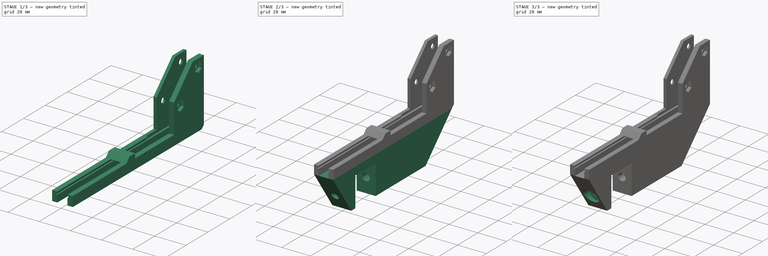
[diagram: build sequence overview — one tinted view per stage of 3, left to right]
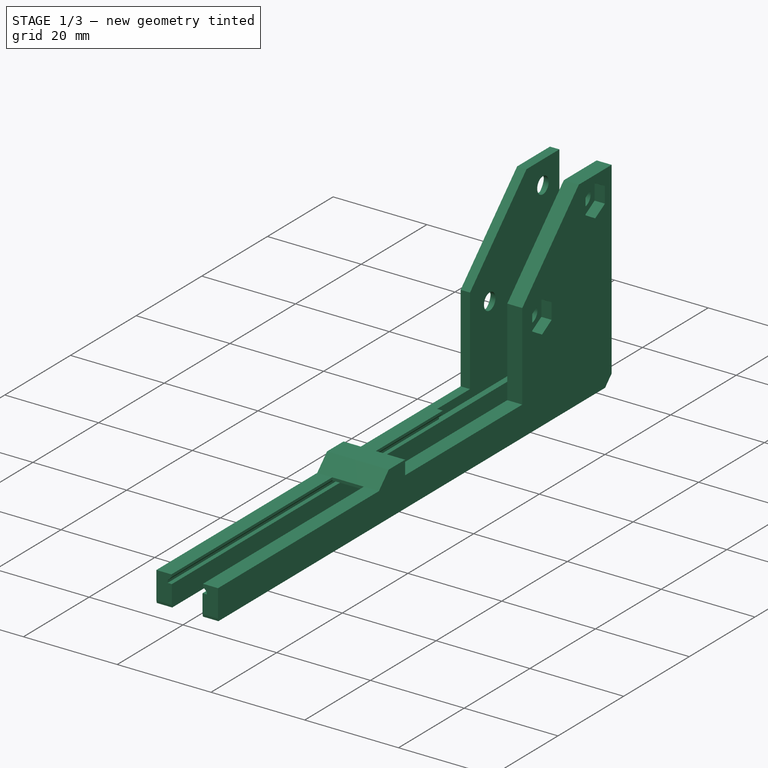
[diagram: stage 1 of 3 — iso view after this stage's code; geometry added in this stage tinted green]
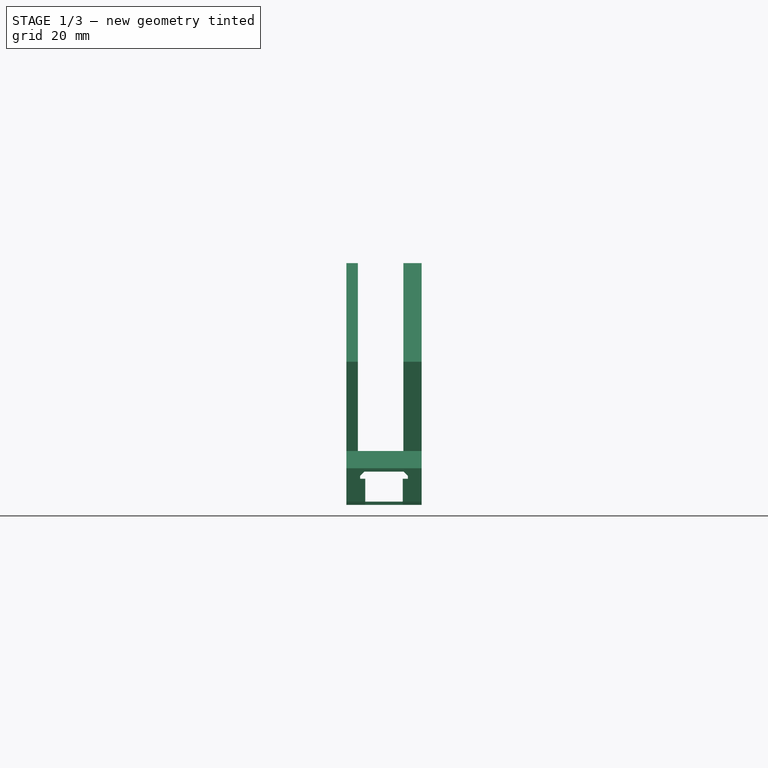
[diagram: stage 1 of 3 — front view after this stage's code; geometry added in this stage tinted green]
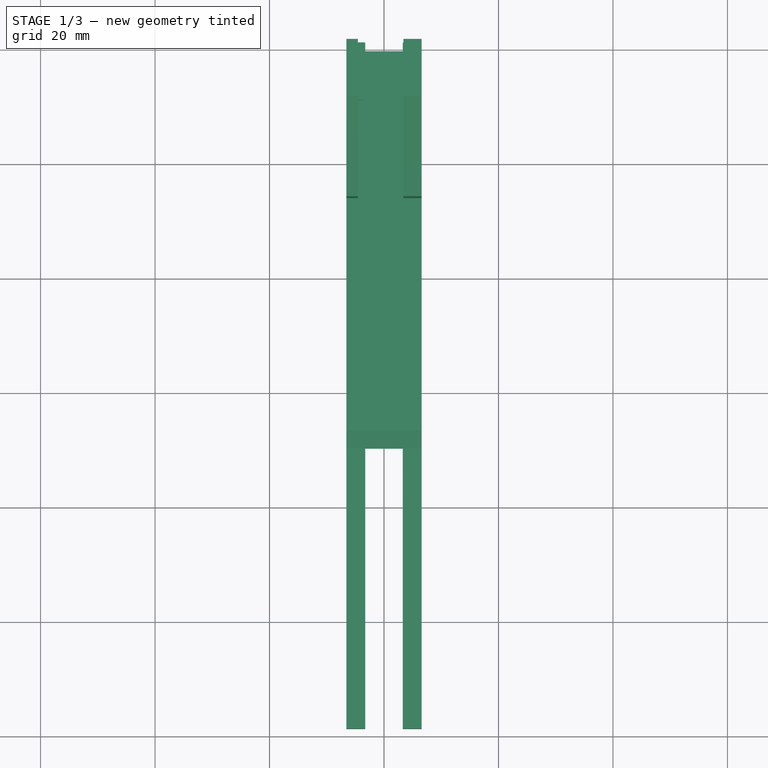
[diagram: stage 1 of 3 — top view after this stage's code; geometry added in this stage tinted green]
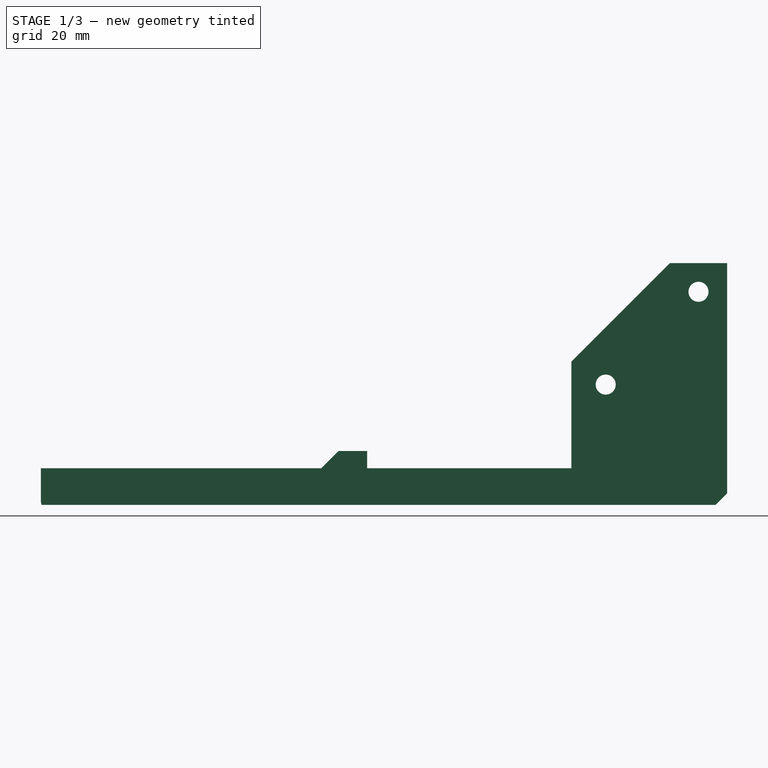
[diagram: stage 1 of 3 — right view after this stage's code; geometry added in this stage tinted green]
FCSTD DOCUMENT  (FreeCAD 0.20R29177 (Git))
Label: feeder-body-plastic-tape
License: All rights reserved
LicenseURL: http://en.wikipedia.org/wiki/All_rights_reserved
objects: Sketcher::SketchObject×5, PartDesign::Pocket×4, Part::Feature×1, PartDesign::FeatureBase×1, PartDesign::Pad×1, PartDesign::Body×1
note: 18 computed .brp shape members not serialized (recipe doc carries the construction recipe); baked Part::Feature solids carry a one-line shape summary decoded from their .brp

FEATURE [Sketcher::SketchObject] Sketch
  AttachmentOffset = pos=(0,0,5) rot=(0,0,1;0rad)
  FullyConstrained = false
  MapMode = 5
  Placement = pos=(0,0,5) rot=(0,0,1;0rad)
  Support = -> [XY_Plane]
  sketch-geometry (4):
    g0: LineSegment StartX=-45.8993 StartY=83.6874 StartZ=0 EndX=45.3893 EndY=83.6874 EndZ=0
    g1: LineSegment StartX=45.3893 StartY=83.6874 StartZ=0 EndX=45.3893 EndY=-43.8529 EndZ=0
    g2: LineSegment StartX=45.3893 StartY=-43.8529 StartZ=0 EndX=-45.8993 EndY=-43.8529 EndZ=0
    g3: LineSegment StartX=-45.8993 StartY=-43.8529 StartZ=0 EndX=-45.8993 EndY=83.6874 EndZ=0
  constraints (8):
    c: Coincident(g0,g1)
    c: Coincident(g1,g2)
    c: Coincident(g2,g3)
    c: Coincident(g3,g0)
    c: Horizontal(g0)
    c: Horizontal(g2)
    c: Vertical(g1)
    c: Vertical(g3)
FEATURE [Sketcher::SketchObject] Sketch001
  FullyConstrained = false
  MapMode = 5
  Placement = pos=(0,0,0) rot=(0.57735,0.57735,0.57735;2.0944rad)
  Support = -> [YZ_Plane]
  sketch-geometry (11):
    g0: LineSegment StartX=-38.5586 StartY=5 StartZ=0 EndX=-20.5586 EndY=-21.1 EndZ=0
    g1: LineSegment StartX=-20.5586 StartY=-21.1 StartZ=0 EndX=-16.5586 EndY=-21.1 EndZ=0
    g2: LineSegment StartX=-16.5586 StartY=-21.1 StartZ=0 EndX=-16.5586 EndY=-1 EndZ=0
    g3: LineSegment StartX=-16.5586 StartY=-1 StartZ=0 EndX=3.54144 EndY=-1 EndZ=0
    g4: LineSegment StartX=3.54144 StartY=-1 StartZ=0 EndX=3.54144 EndY=-21.1 EndZ=0
    g5: LineSegment StartX=3.54144 StartY=-21.1 StartZ=0 EndX=53.1136 EndY=-21.1 EndZ=0
    g6: LineSegment StartX=53.1136 StartY=-21.1 StartZ=0 EndX=79.2136 EndY=5 EndZ=0
    g7: LineSegment StartX=79.2136 StartY=5 StartZ=0 EndX=-38.5586 EndY=5 EndZ=0
    g8: LineSegment StartX=-16.5586 StartY=-1 StartZ=0 EndX=-16.5586 EndY=-0.5 EndZ=0
    g9: LineSegment StartX=-16.5586 StartY=-0.5 StartZ=0 EndX=3.54144 EndY=-0.5 EndZ=0
    g10: LineSegment StartX=3.54144 StartY=-0.5 StartZ=0 EndX=3.54144 EndY=-1 EndZ=0
  constraints (28):
    c: Coincident(g0,g1)
    c: Horizontal(g1)
    c: Coincident(g1,g2)
    c: Vertical(g2)
    c: Coincident(g2,g3)
    c: Horizontal(g3)
    c: Coincident(g3,g4)
    c: Vertical(g4)
    c: Coincident(g4,g5)
    c: Horizontal(g5)
    c: Coincident(g5,g6)
    c: Coincident(g6,g7)
    c: Coincident(g7,g0)
    c: DistanceY(g4,g4) = 20.1
    c: Equal(g4,g3)
    c: Equal(g2,g4)
    c: DistanceX(g1,g1) = 4
    c: DistanceX(g0,g2) = 22
    c: Angle(g6,g5) = 2.35619
    c: DistanceY(g2,g0) = 6
    c: Coincident(g2,g8)
    c: Vertical(g8)
    c: Coincident(g8,g9)
    c: Horizontal(g9)
    c: Coincident(g9,g10)
    c: Coincident(g10,g4)
    c: Vertical(g10)
    c: DistanceY(g10,g10) = 0.5
FEATURE [Part::Feature] Part__Feature001  label="Rail Feeder Plastic Tape"
  shape: bbox 13.15 x 119.9 x 80.22 mm, 75 faces (baked)
FEATURE [PartDesign::FeatureBase] BaseFeature
  BaseFeature = -> Part__Feature001
FEATURE [PartDesign::Pocket] Pocket
  BaseFeature = -> BaseFeature
  Direction = (0,0,-1)
  Length = 5
  Length2 = 5
  Profile = -> Sketch
  ReferenceAxis = -> Sketch [N_Axis]
  Type = 1
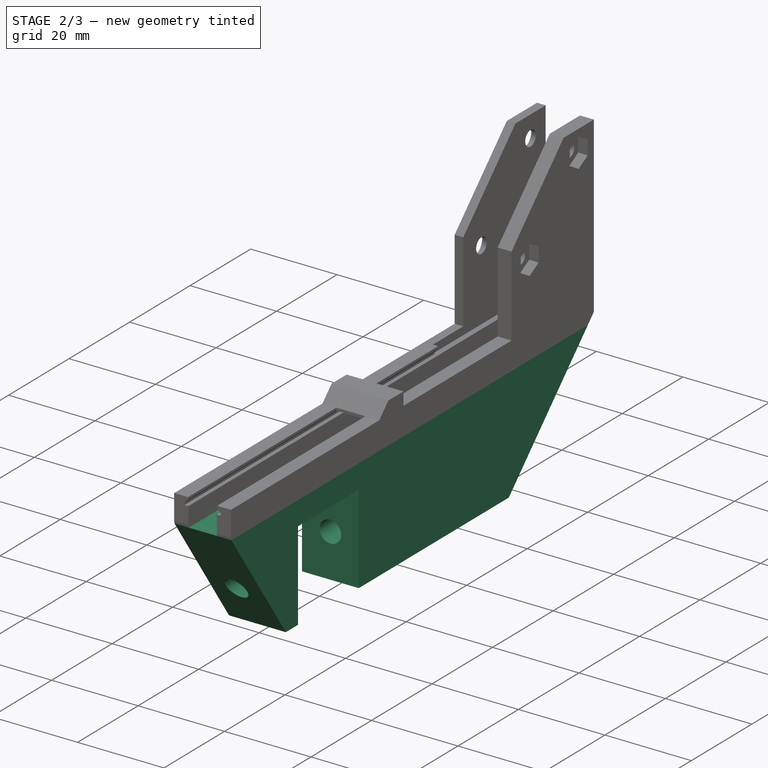
[diagram: stage 2 of 3 — iso view after this stage's code; geometry added in this stage tinted green]
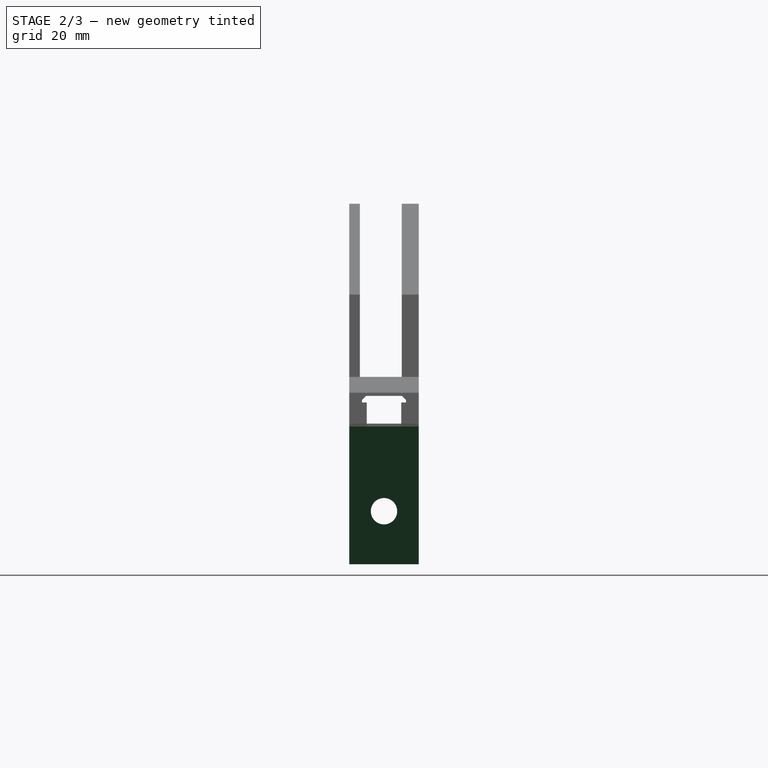
[diagram: stage 2 of 3 — front view after this stage's code; geometry added in this stage tinted green]
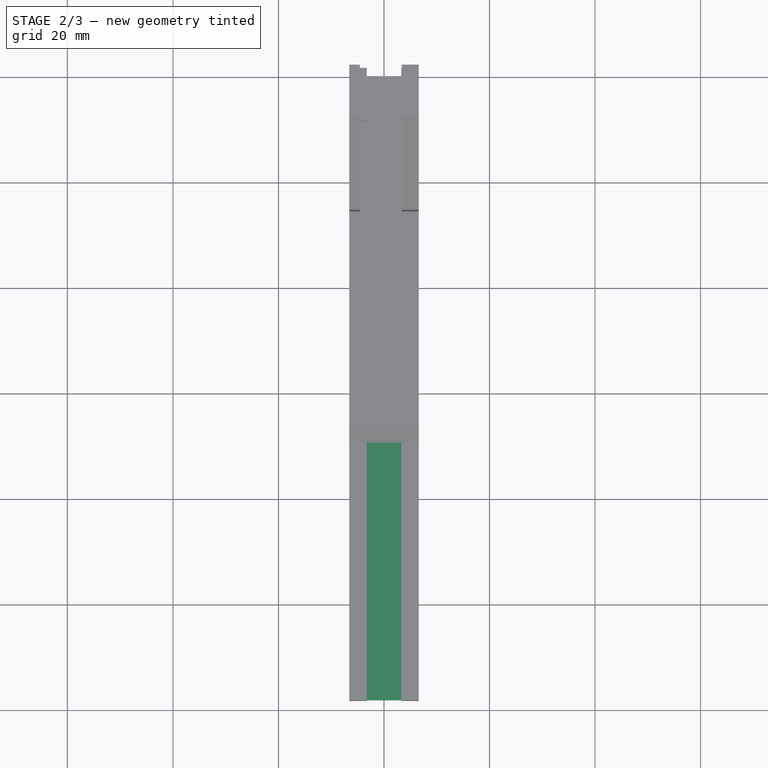
[diagram: stage 2 of 3 — top view after this stage's code; geometry added in this stage tinted green]
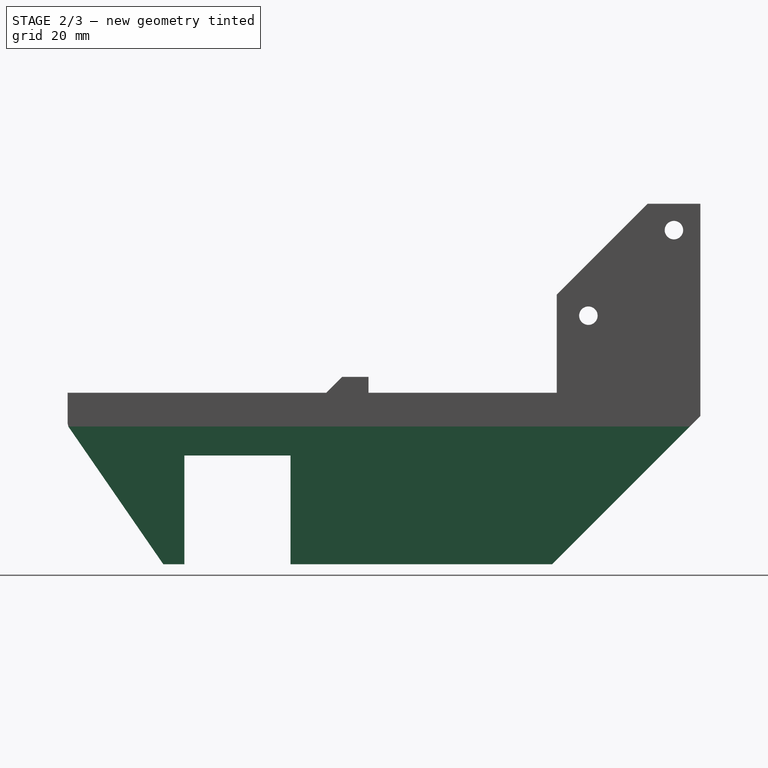
[diagram: stage 2 of 3 — right view after this stage's code; geometry added in this stage tinted green]
FEATURE [PartDesign::Pad] Pad
  BaseFeature = -> Pocket
  Direction = (1,-2e-16,3e-16)
  Length = 13.15
  Length2 = 10
  Midplane = true
  Profile = -> Sketch001
  ReferenceAxis = -> Sketch001 [N_Axis]
  Type = 0
FEATURE [Sketcher::SketchObject] Sketch002
  ExternalGeometry = -> [Pad]
  FullyConstrained = true
  MapMode = 5
  Placement = pos=(8e-16,3.54144,-8e-16) rot=(1,0,0;1.5708rad)
  Support = -> [Pad]
  sketch-geometry (2):
    g0: Circle CenterX=0 CenterY=-11.05 CenterZ=0 NormalX=0 NormalY=0 NormalZ=1 AngleXU=0 Radius=2.5
    g1: GeomPoint X=6.575 Y=-11.05 Z=0
  constraints (4):
    c: PointOnObject(g0,g-2)
    c: Diameter(g0) = 5
    c: Symmetric(g-3,g-3,g1)
    c: Horizontal(g0,g1)
FEATURE [PartDesign::Pocket] Pocket001
  BaseFeature = -> Pad
  Direction = (2e-16,1,-2e-16)
  Length = 5
  Length2 = 5
  Midplane = true
  Profile = -> Sketch002
  ReferenceAxis = -> Sketch002 [N_Axis]
  Type = 1
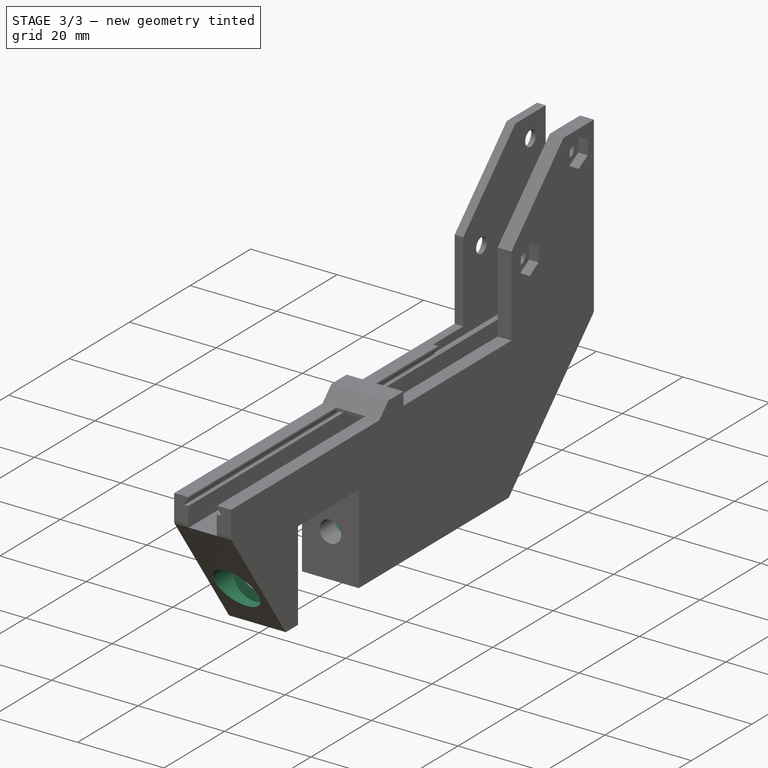
[diagram: stage 3 of 3 — iso view after this stage's code; geometry added in this stage tinted green]
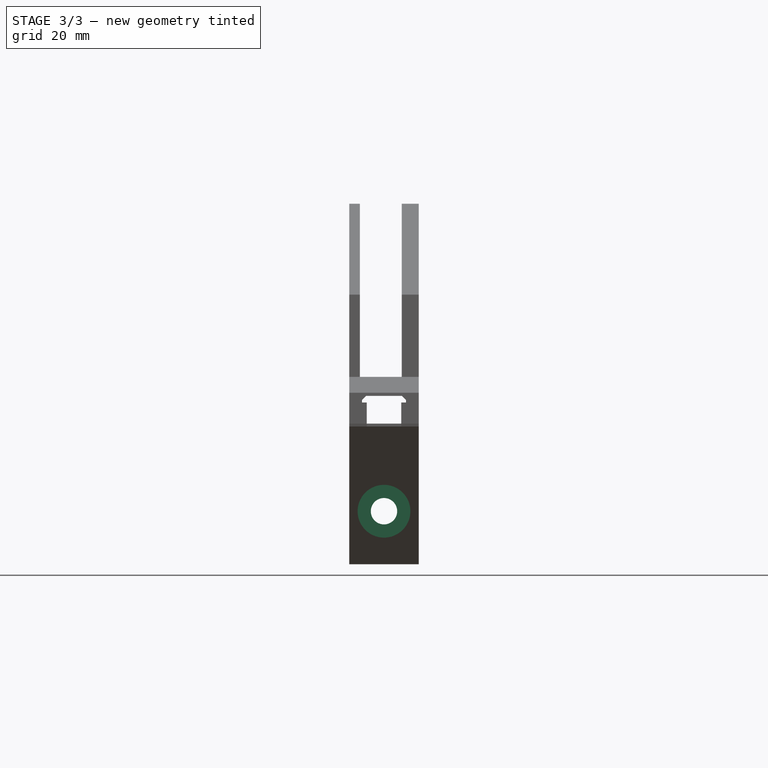
[diagram: stage 3 of 3 — front view after this stage's code; geometry added in this stage tinted green]
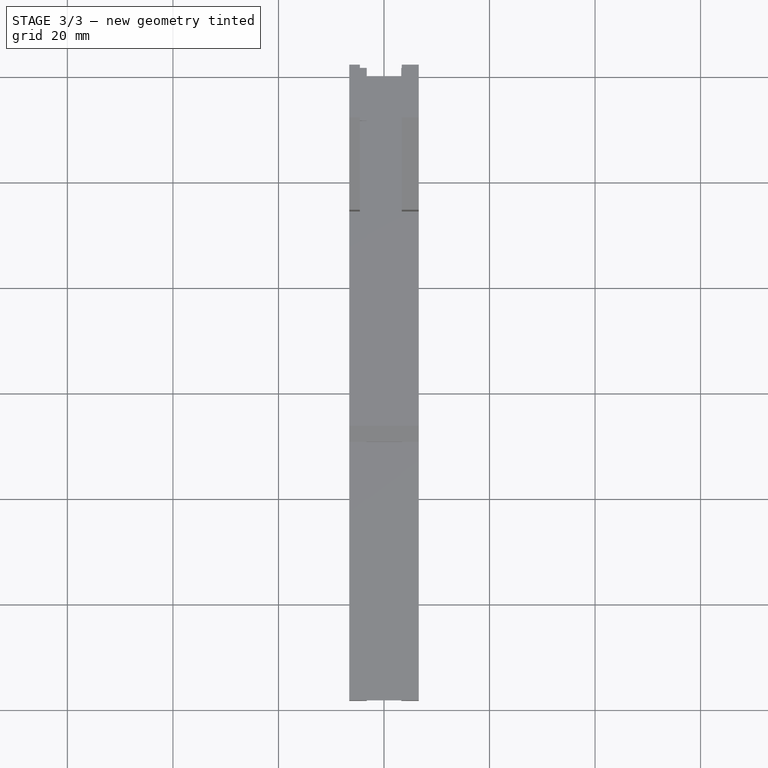
[diagram: stage 3 of 3 — top view after this stage's code; geometry added in this stage tinted green]
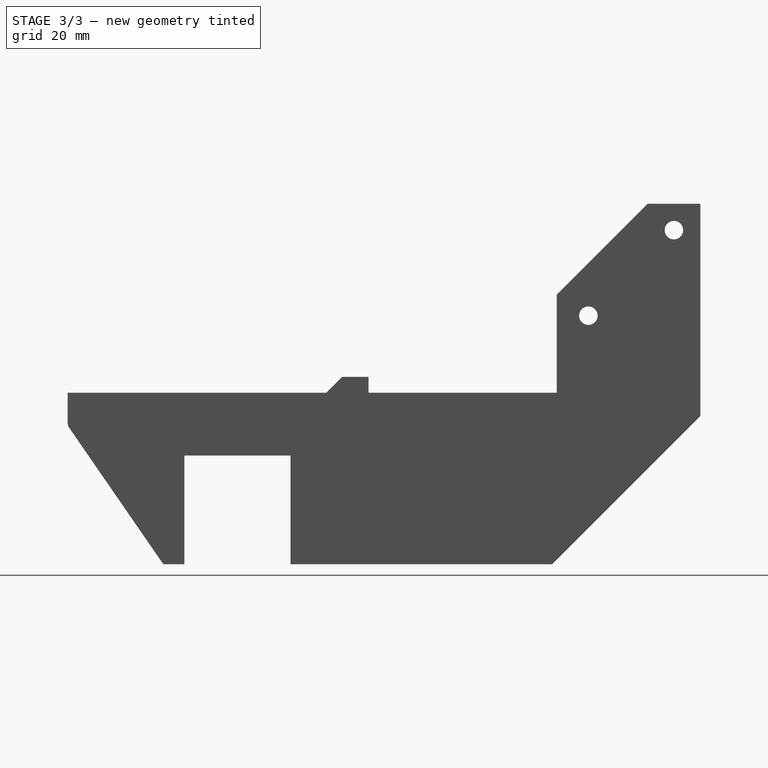
[diagram: stage 3 of 3 — right view after this stage's code; geometry added in this stage tinted green]
FEATURE [Sketcher::SketchObject] Sketch003
  AttachmentOffset = pos=(0,0,-5) rot=(0,0,1;0rad)
  ExternalGeometry = -> [Pad]
  FullyConstrained = true
  MapMode = 5
  Placement = pos=(1.9e-15,8.54144,-1.9e-15) rot=(1,0,0;1.5708rad)
  Support = -> [Pad]
  sketch-geometry (2):
    g0: Circle CenterX=0 CenterY=-11.05 CenterZ=0 NormalX=0 NormalY=0 NormalZ=1 AngleXU=0 Radius=5
    g1: GeomPoint X=6.575 Y=-11.05 Z=0
  constraints (4):
    c: PointOnObject(g0,g-2)
    c: Diameter(g0) = 10
    c: Symmetric(g-3,g-3,g1)
    c: Horizontal(g0,g1)
FEATURE [PartDesign::Pocket] Pocket002
  BaseFeature = -> Pocket001
  Direction = (2e-16,1,-2e-16)
  Length = 5
  Length2 = 5
  Profile = -> Sketch003
  ReferenceAxis = -> Sketch003 [N_Axis]
  Type = 1
FEATURE [Sketcher::SketchObject] Sketch004
  AttachmentOffset = pos=(0,0,25) rot=(0,0,1;0rad)
  ExternalGeometry = -> [Pad]
  FullyConstrained = true
  MapMode = 5
  Placement = pos=(-4.8e-15,-21.4586,4.8e-15) rot=(1,0,0;1.5708rad)
  Support = -> [Pad]
  sketch-geometry (2):
    g0: Circle CenterX=0 CenterY=-11.05 CenterZ=0 NormalX=0 NormalY=0 NormalZ=1 AngleXU=0 Radius=5
    g1: GeomPoint X=6.575 Y=-11.05 Z=0
  constraints (4):
    c: PointOnObject(g0,g-2)
    c: Diameter(g0) = 10
    c: Symmetric(g-3,g-3,g1)
    c: Horizontal(g0,g1)
FEATURE [PartDesign::Pocket] Pocket003
  BaseFeature = -> Pocket002
  Direction = (2e-16,1,-2e-16)
  Length = 5
  Length2 = 5
  Profile = -> Sketch004
  ReferenceAxis = -> Sketch004 [N_Axis]
  Reversed = true
  Type = 1
FEATURE [PartDesign::Body] Body
  BaseFeature = -> Part__Feature001
  Group = -> [BaseFeature,Sketch,Pocket,Sketch001,Pad,Sketch002,Pocket001,Sketch003,Pocket002,Sketch004,Pocket003]
  Origin = -> Origin
  Tip = -> Pocket003
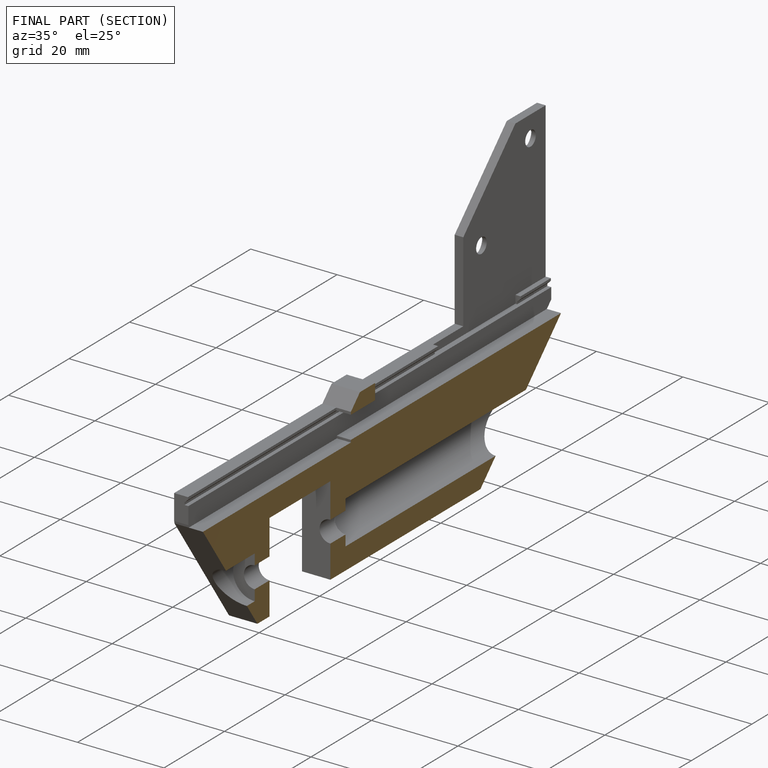
[diagram: finished part — half-section view (interior)]
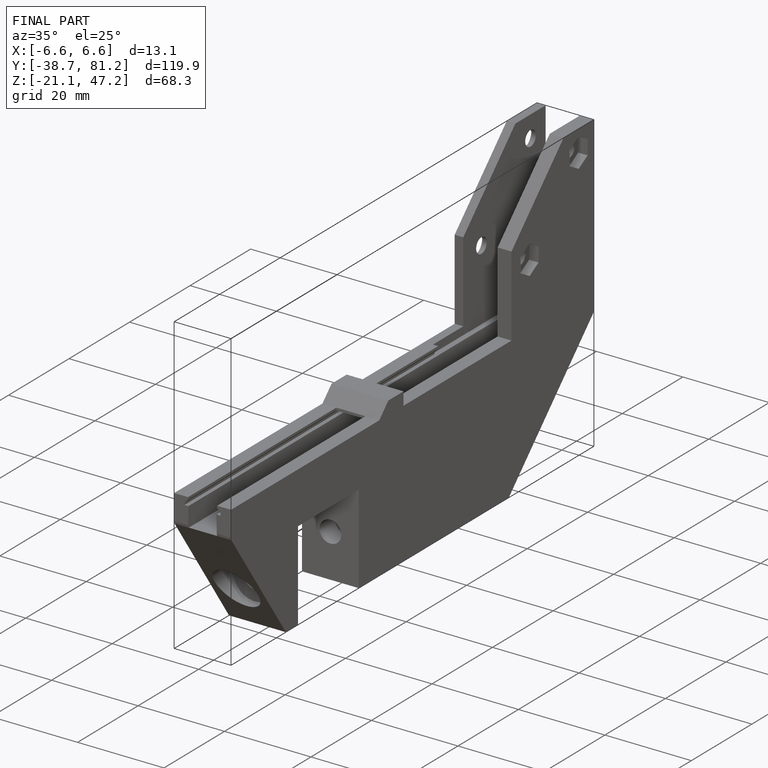
[diagram: finished part — iso view with bounding-box wireframe]
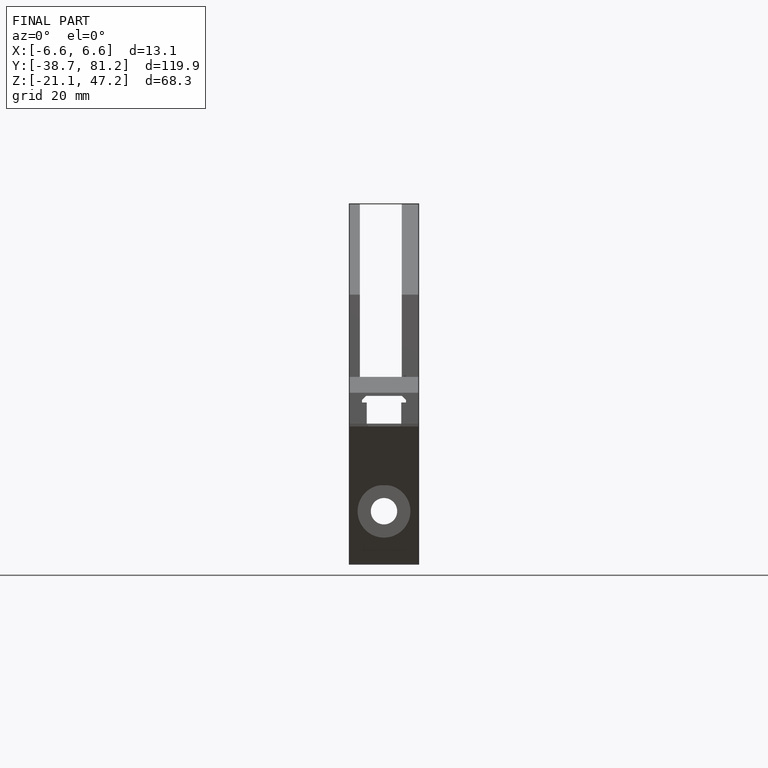
[diagram: finished part — front view with bounding-box wireframe]
